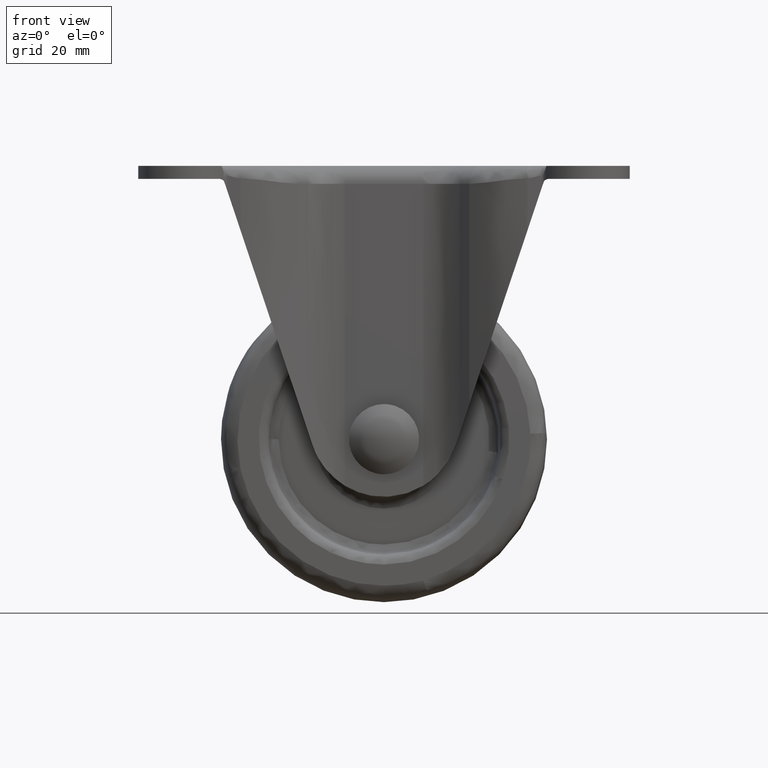
[diagram: clean part render]
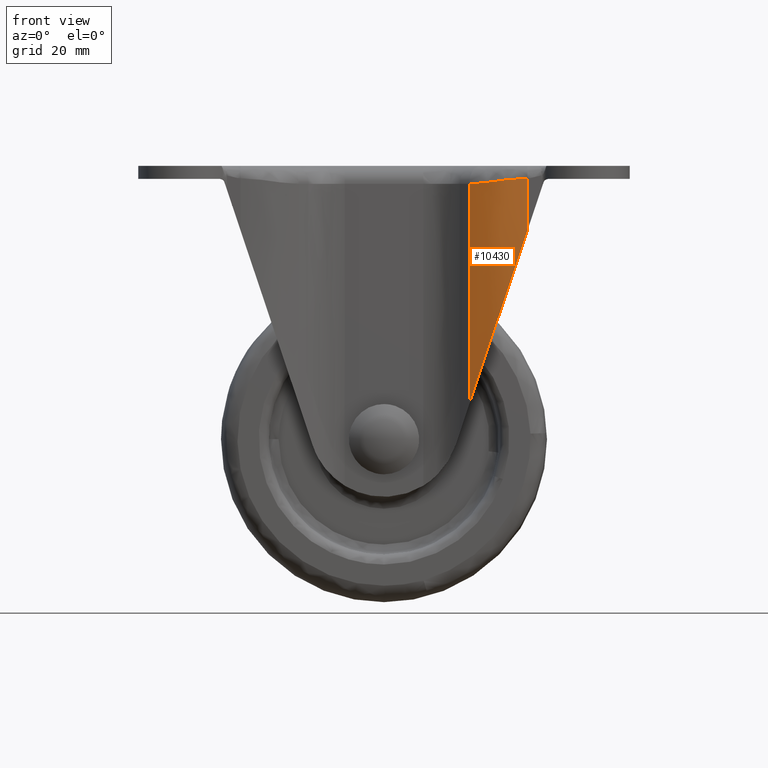
[diagram: same view with one face highlighted and labeled with its STEP entity id]
A machine part, front view. The second image highlights one B-rep face of the part: STEP entity #10430.
In plain terms, the highlighted face is a freeform B-spline surface patch.
Its self-contained STEP definition (entity closure, byte-faithful):
#5556=CARTESIAN_POINT('',(28.582093000000000,-27.197595000000000,-2.500000000000060));
#5557=VERTEX_POINT('',#5556);
#5629=CARTESIAN_POINT('',(17.011995972972599,-23.267688771869000,-3.600000000000050));
#5630=VERTEX_POINT('',#5629);
#5644=CARTESIAN_POINT('',(28.582093000000000,-27.197595000000000,-2.500000000000060));
#5645=CARTESIAN_POINT('',(28.425281316022051,-27.196470289618791,-2.500961652636433));
#5646=CARTESIAN_POINT('',(28.105202212046311,-27.194174565971700,-2.502924547915752));
#5647=CARTESIAN_POINT('',(27.615844686064921,-27.175040898330710,-2.518026783424991));
#5648=CARTESIAN_POINT('',(27.108003360759209,-27.142725545316090,-2.541902614054841));
#5649=CARTESIAN_POINT('',(26.582139764408591,-27.094563334826120,-2.575518250334608));
#5650=CARTESIAN_POINT('',(26.038805909635339,-27.029326171506408,-2.618655518700681));
#5651=CARTESIAN_POINT('',(25.243991726144529,-26.910143188286138,-2.693153379596018));
#5652=CARTESIAN_POINT('',(24.041477757217660,-26.669014393663691,-2.835561050478065));
#5653=CARTESIAN_POINT('',(22.463249339078551,-26.215700767604542,-3.049993520703918));
#5654=CARTESIAN_POINT('',(20.935359731844780,-25.613902362807320,-3.264398286441210));
#5655=CARTESIAN_POINT('',(19.671486878242330,-24.992849667147070,-3.427989360470331));
#5656=CARTESIAN_POINT('',(18.674592014621460,-24.420507212166619,-3.526436985876406));
#5657=CARTESIAN_POINT('',(17.803132264967779,-23.856940450907661,-3.587730275860123));
#5658=CARTESIAN_POINT('',(17.268761614003239,-23.458932000859129,-3.596017825675616));
#5659=CARTESIAN_POINT('',(17.011995972972599,-23.267688771869000,-3.600000000000050));
#5660=B_SPLINE_CURVE_WITH_KNOTS('',3,(#5644,#5645,#5646,#5647,#5648,#5649,#5650,#5651,#5652,#5653,#5654,#5655,#5656,#5657,#5658,#5659),.UNSPECIFIED.,.F.,.U.,(4,1,1,1,1,1,1,1,1,1,1,1,1,4),(0.0,0.037645860311004,0.076841552434549,0.117600262685556,0.159933715348361,0.203852372093287,0.249365599999512,0.353681590527557,0.500015896129108,0.646323904973696,0.750666201924999,0.840073499960773,0.923155188634670,1.0),.UNSPECIFIED.);
#5661=EDGE_CURVE('',#5557,#5630,#5660,.T.);
#8524=CARTESIAN_POINT('',(28.582093000000050,-27.197594999999801,-12.931160913379101));
#8525=VERTEX_POINT('',#8524);
#8531=CARTESIAN_POINT('',(17.011995972972599,-23.267688771869000,-47.445385678694201));
#8532=VERTEX_POINT('',#8531);
#8533=CARTESIAN_POINT('',(28.582093000000050,-27.197594999999801,-12.931160913379101));
#8534=CARTESIAN_POINT('',(22.129627259166561,-27.197595937146797,-32.179214957299131));
#8535=CARTESIAN_POINT('',(17.011995972972599,-23.267688771869000,-47.445385678694201));
#8543=(BOUNDED_CURVE()B_SPLINE_CURVE(2,(#8533,#8534,#8535),.UNSPECIFIED.,.F.,.U.)CURVE()GEOMETRIC_REPRESENTATION_ITEM()QUASI_UNIFORM_CURVE()RATIONAL_B_SPLINE_CURVE((1.0,0.946870614661221,1.0))REPRESENTATION_ITEM(''));
#8544=EDGE_CURVE('',#8525,#8532,#8543,.T.);
#10397=CARTESIAN_POINT('',(28.582093000000050,-27.197594999999801,-12.931160913379101));
#10398=CARTESIAN_POINT('',(28.582093000000000,-27.197595000000000,-2.500000000000060));
#10399=QUASI_UNIFORM_CURVE('',1,(#10397,#10398),.UNSPECIFIED.,.F.,.U.);
#10400=EDGE_CURVE('',#8525,#5557,#10399,.T.);
#10406=CARTESIAN_POINT('',(29.188364064894511,-27.187918154247960,-48.569020320661551));
#10407=CARTESIAN_POINT('',(29.188364064894511,-27.187918154247960,-1.348274491983518));
#10408=CARTESIAN_POINT('',(22.052911931704813,-27.415757710165401,-48.569020320661558));
#10409=CARTESIAN_POINT('',(22.052911931704813,-27.415757710165401,-1.348274491983516));
#10410=CARTESIAN_POINT('',(16.533456212491906,-22.887822576803824,-48.569020320661558));
#10411=CARTESIAN_POINT('',(16.533456212491906,-22.887822576803824,-1.348274491983517));
#10419=(BOUNDED_SURFACE()B_SPLINE_SURFACE(1,2,((#10406,#10408,#10410),(#10407,#10409,#10411)),.UNSPECIFIED.,.F.,.F.,.U.)B_SPLINE_SURFACE_WITH_KNOTS((2,2),(3,3),(0.0,47.220745828678048),(0.0,13.806734454455370),.UNSPECIFIED.)GEOMETRIC_REPRESENTATION_ITEM()RATIONAL_B_SPLINE_SURFACE(((0.999493265568808,0.931894643701307,0.991577451903556),(0.999493265568808,0.931894643701307,0.991577451903556)))REPRESENTATION_ITEM('')SURFACE());
#10420=ORIENTED_EDGE('',*,*,#10400,.T.);
#10421=ORIENTED_EDGE('',*,*,#5661,.T.);
#10422=CARTESIAN_POINT('',(17.011995972972599,-23.267688771869000,-47.445385678694201));
#10423=CARTESIAN_POINT('',(17.011995972972599,-23.267688771869000,-3.600000000000050));
#10424=QUASI_UNIFORM_CURVE('',1,(#10422,#10423),.UNSPECIFIED.,.F.,.U.);
#10425=EDGE_CURVE('',#8532,#5630,#10424,.T.);
#10426=ORIENTED_EDGE('',*,*,#10425,.F.);
#10427=ORIENTED_EDGE('',*,*,#8544,.F.);
#10428=EDGE_LOOP('',(#10420,#10421,#10426,#10427));
#10429=FACE_OUTER_BOUND('',#10428,.T.);
#10430=ADVANCED_FACE('',(#10429),#10419,.T.);